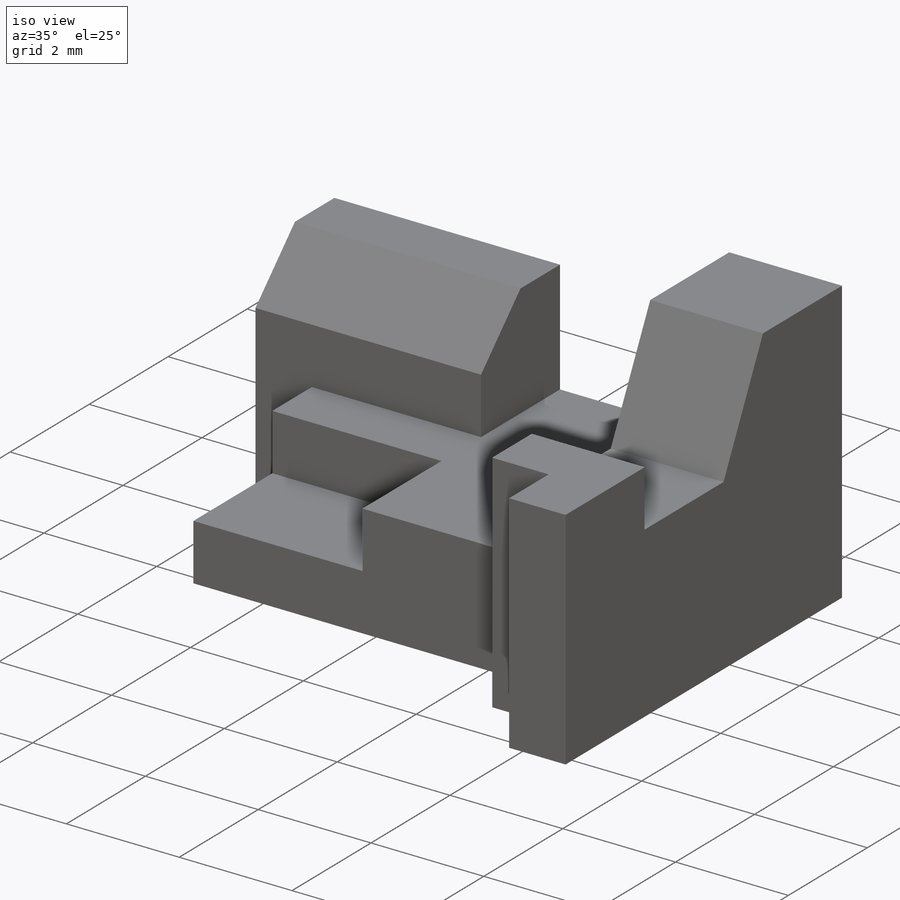
[diagram: iso view]
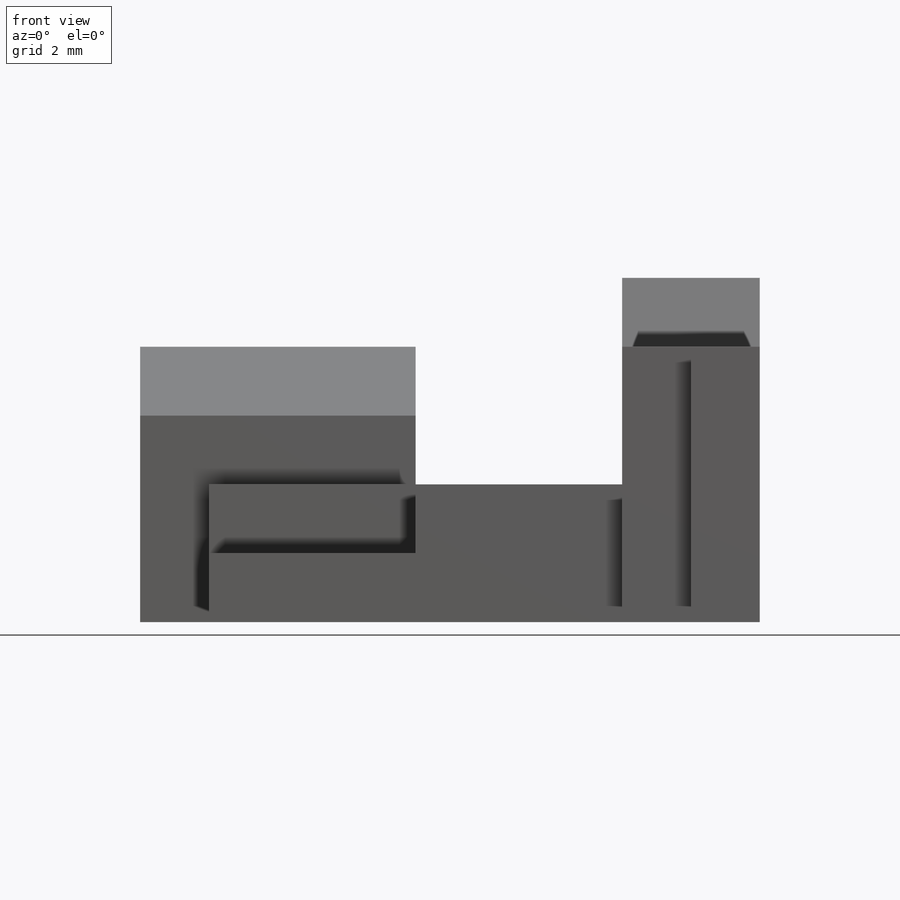
[diagram: front view]
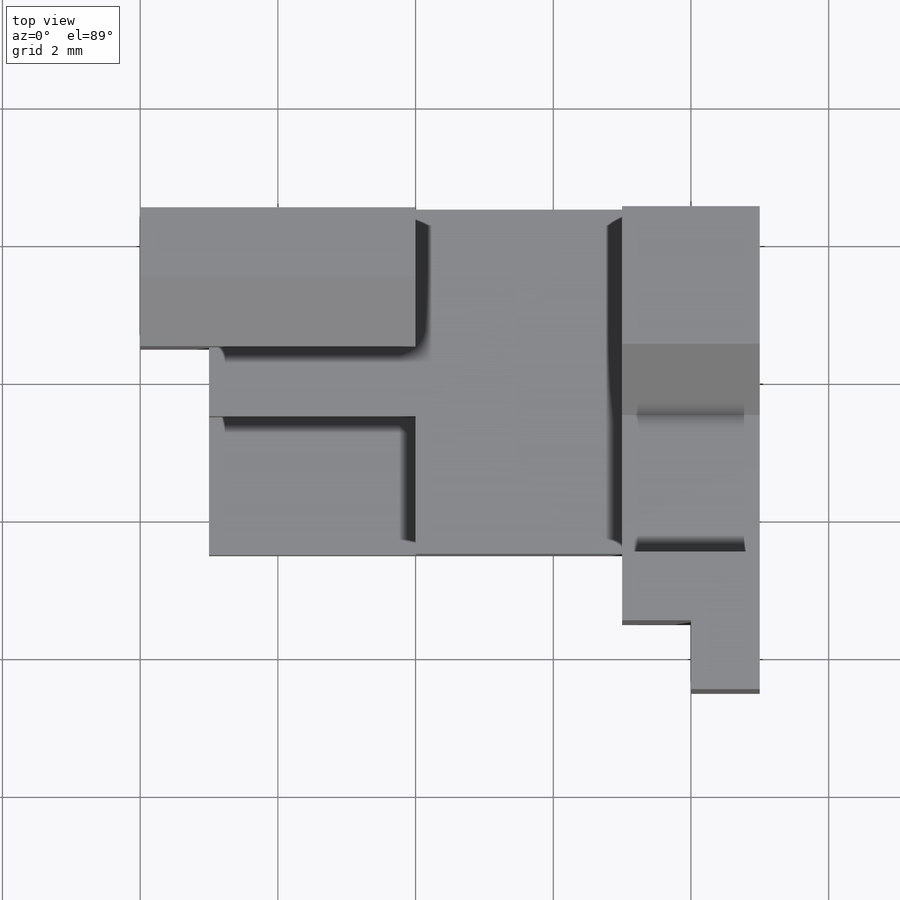
[diagram: top view]
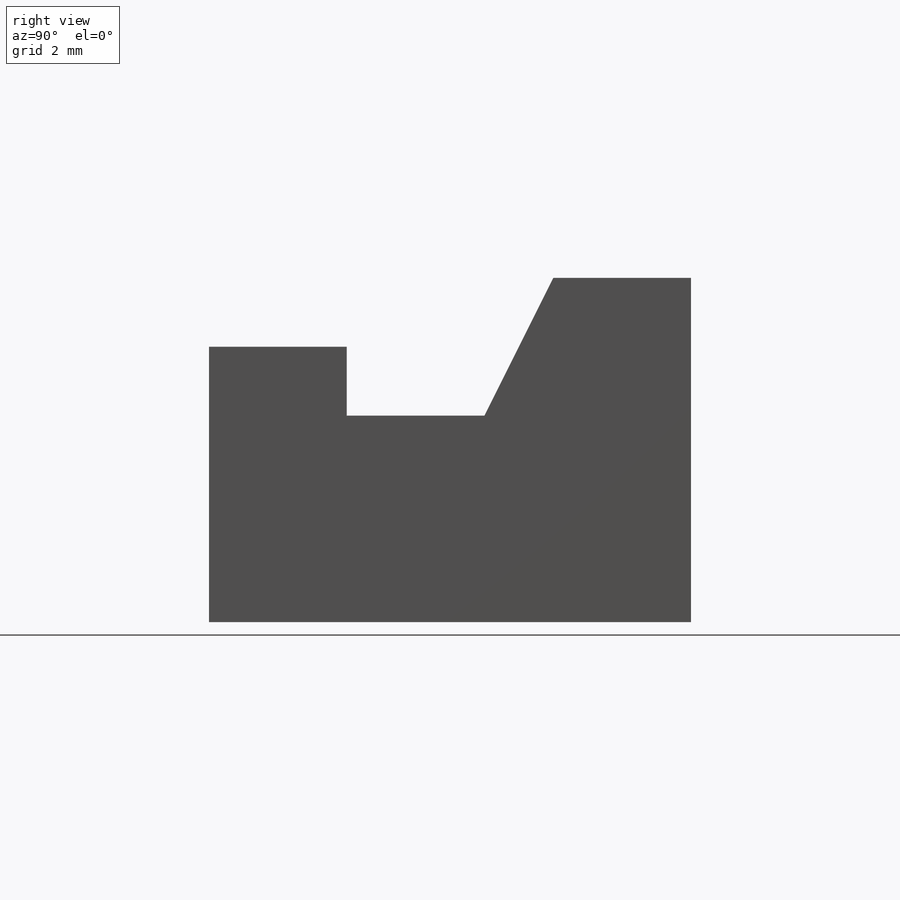
[diagram: right view]
SOLIDWORKS PART (.sldprt)
format: sldprt  version: not decoded by parser v0  size: 199,680 bytes
history: native  units: mm
features: sketch x5, extrude x3, cut_extrude x2, material x1, chamfer x1 (+13 scaffold rows collapsed)
feature tree (25):
  scaffold x13  (default folders/planes/origin — collapsed)
  material  "Material <not specified>"
  sketch  "Sketch1"  dims[D1=6.0mm D2=5.0mm]
  extrude  "Boss-Extrude1"  Depth=2mm
  sketch  "Sketch2"  dims[D1=2.0mm D2=4.0mm D3=1.0mm]
  extrude  "Boss-Extrude2"  Depth=4mm
  chamfer  "Chamfer1"  Distance=1mm
  sketch  "Sketch3"  dims[c1.D1=~5.595706mm c1.D2=7.0mm c1.D3=1.0mm c1.D4=2.0mm c1.D5=~1.404294mm c2.D1=1.0mm c2.D5=6.0mm]
  extrude  "Boss-Extrude3"  Depth=5mm
  sketch  "Sketch5"  dims[D1=2.0mm D2=1.0mm D3=2.0mm D4=1.0mm D5=2.0mm]
  cut_extrude  "Cut-Extrude1"  Depth=5mm
  sketch  "Sketch6"  dims[D1=3.0mm D2=2.0mm]
  cut_extrude  "Cut-Extrude2"  Depth=1mm
decode coverage: 11 of 11 modeling features carry decoded parameters
note: ~ marks probable driven/reference dimensions
note: suppression state not decoded; provenance and decode notes live in map.json
